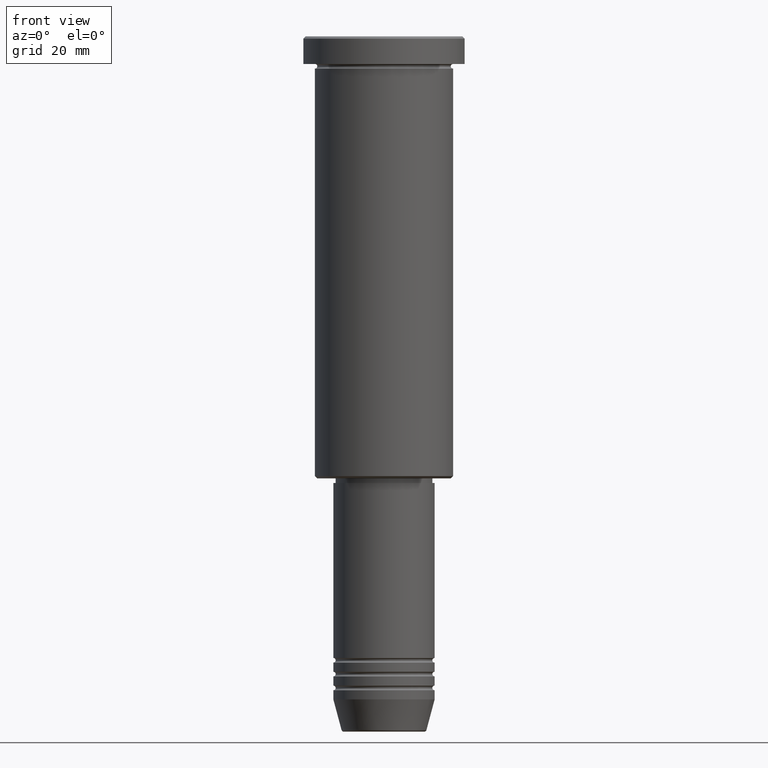
[diagram: clean part render]
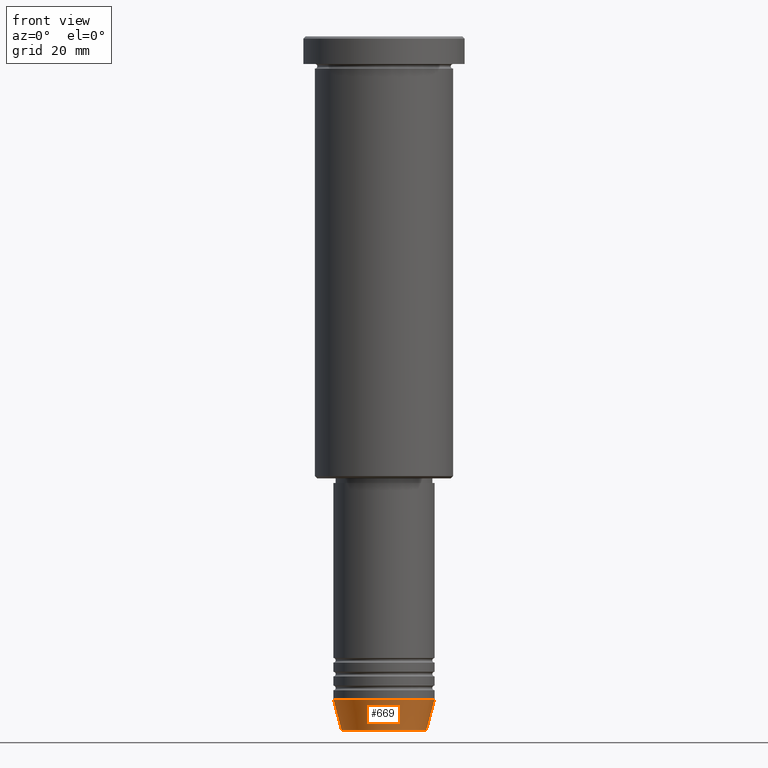
[diagram: same view with one face highlighted and labeled with its STEP entity id]
A machine part, front view. The second image highlights one B-rep face of the part: STEP entity #669.
In plain terms, the highlighted conical surface has half-angle 15 deg.
Its self-contained STEP definition (entity closure, byte-faithful):
#1 = CARTESIAN_POINT ( 'NONE',  ( 0.000000000000000000, 0.000000000000000000, -144.0000000000000284 ) ) ;
#11 = EDGE_LOOP ( 'NONE', ( #1047, #834, #413, #519 ) ) ;
#14 = AXIS2_PLACEMENT_3D ( 'NONE', #1, #746, #457 ) ;
#34 = VECTOR ( 'NONE', #708, 1000.000000000000000 ) ;
#35 = VECTOR ( 'NONE', #484, 1000.000000000000000 ) ;
#102 = LINE ( 'NONE', #933, #35 ) ;
#119 = DIRECTION ( 'NONE',  ( 1.000000000000000000, 0.000000000000000000, 0.000000000000000000 ) ) ;
#148 = EDGE_CURVE ( 'NONE', #710, #967, #365, .T. ) ;
#210 = AXIS2_PLACEMENT_3D ( 'NONE', #389, #491, #372 ) ;
#242 = CARTESIAN_POINT ( 'NONE',  ( -11.00000000000000000, 1.347111479062088405E-15, -144.0000000000000284 ) ) ;
#283 = CARTESIAN_POINT ( 'NONE',  ( 0.000000000000000000, 0.000000000000000000, -150.6294095225512706 ) ) ;
#309 = AXIS2_PLACEMENT_3D ( 'NONE', #283, #385, #119 ) ;
#365 = CIRCLE ( 'NONE', #14, 11.00000000000000000 ) ;
#372 = DIRECTION ( 'NONE',  ( 1.000000000000000000, 0.000000000000000000, 0.000000000000000000 ) ) ;
#383 = EDGE_CURVE ( 'NONE', #504, #710, #1144, .T. ) ;
#385 = DIRECTION ( 'NONE',  ( -0.000000000000000000, -0.000000000000000000, 1.000000000000000000 ) ) ;
#389 = CARTESIAN_POINT ( 'NONE',  ( 0.000000000000000000, 0.000000000000000000, -144.0000000000000284 ) ) ;
#413 = ORIENTED_EDGE ( 'NONE', *, *, #1133, .T. ) ;
#457 = DIRECTION ( 'NONE',  ( 1.000000000000000000, 0.000000000000000000, 0.000000000000000000 ) ) ;
#484 = DIRECTION ( 'NONE',  ( 0.2588190451025213501, 0.000000000000000000, 0.9659258262890680902 ) ) ;
#486 = FACE_OUTER_BOUND ( 'NONE', #11, .T. ) ;
#490 = VERTEX_POINT ( 'NONE', #827 ) ;
#491 = DIRECTION ( 'NONE',  ( -0.000000000000000000, -0.000000000000000000, 1.000000000000000000 ) ) ;
#504 = VERTEX_POINT ( 'NONE', #720 ) ;
#519 = ORIENTED_EDGE ( 'NONE', *, *, #148, .F. ) ;
#650 = EDGE_CURVE ( 'NONE', #504, #490, #991, .T. ) ;
#669 = ADVANCED_FACE ( 'NONE', ( #486 ), #974, .T. ) ;
#708 = DIRECTION ( 'NONE',  ( -0.2588190451025213501, 3.169619151431772337E-17, 0.9659258262890680902 ) ) ;
#710 = VERTEX_POINT ( 'NONE', #934 ) ;
#720 = CARTESIAN_POINT ( 'NONE',  ( -9.223655072137189492, 1.238341722557647202E-15, -150.6294095225512706 ) ) ;
#746 = DIRECTION ( 'NONE',  ( -0.000000000000000000, -0.000000000000000000, 1.000000000000000000 ) ) ;
#827 = CARTESIAN_POINT ( 'NONE',  ( 9.223655072137189492, 0.000000000000000000, -150.6294095225512706 ) ) ;
#834 = ORIENTED_EDGE ( 'NONE', *, *, #650, .T. ) ;
#933 = CARTESIAN_POINT ( 'NONE',  ( 11.00000000000000000, 0.000000000000000000, -144.0000000000000284 ) ) ;
#934 = CARTESIAN_POINT ( 'NONE',  ( -11.00000000000000000, 1.347111479062088405E-15, -144.0000000000000284 ) ) ;
#967 = VERTEX_POINT ( 'NONE', #1078 ) ;
#974 = CONICAL_SURFACE ( 'NONE', #210, 11.00000000000000000, 0.2617993877991500740 ) ;
#991 = CIRCLE ( 'NONE', #309, 9.223655072137189492 ) ;
#1047 = ORIENTED_EDGE ( 'NONE', *, *, #383, .F. ) ;
#1078 = CARTESIAN_POINT ( 'NONE',  ( 11.00000000000000000, 0.000000000000000000, -144.0000000000000284 ) ) ;
#1133 = EDGE_CURVE ( 'NONE', #490, #967, #102, .T. ) ;
#1144 = LINE ( 'NONE', #242, #34 ) ;